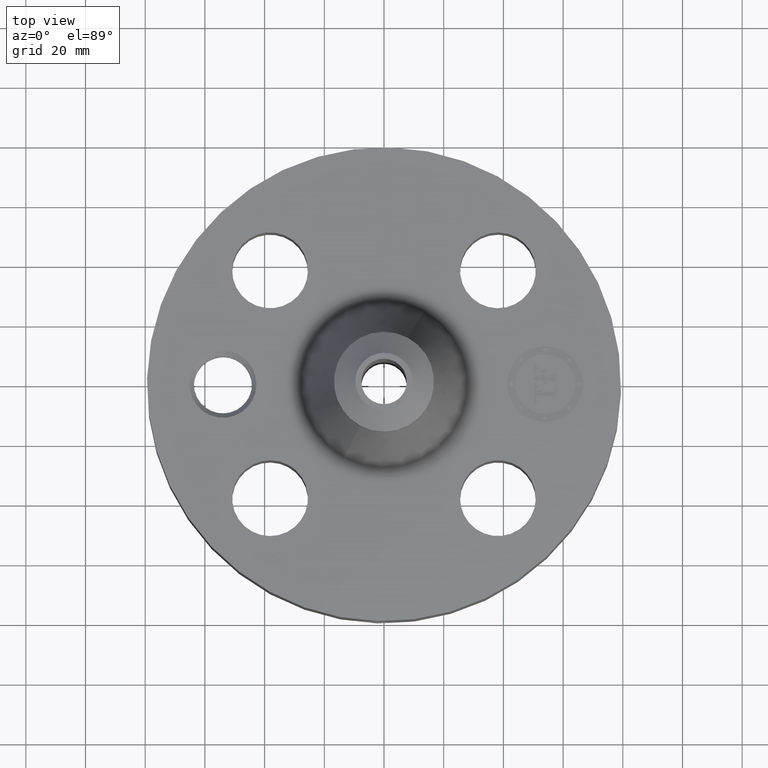
[diagram: clean part render]
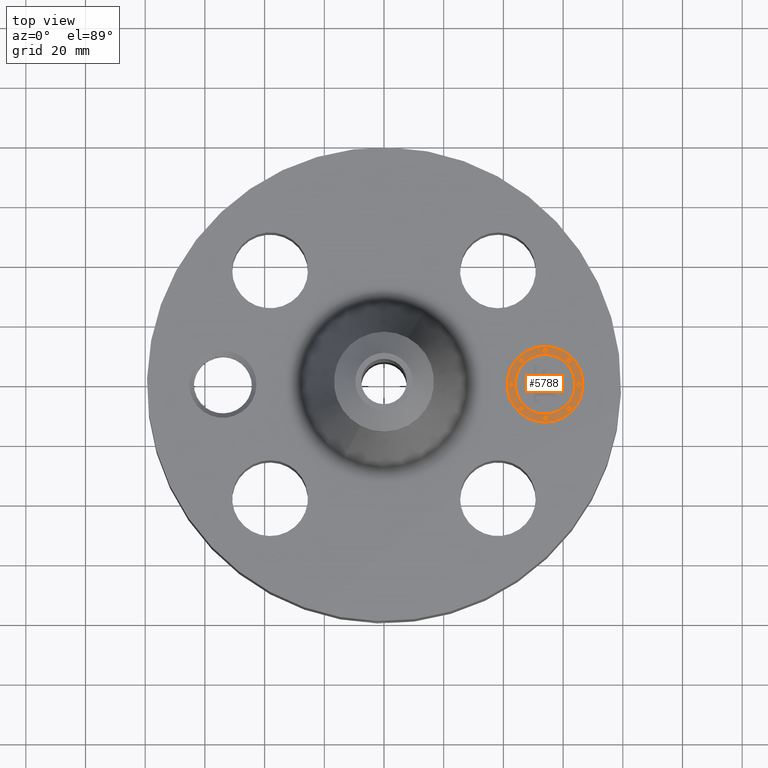
[diagram: same view with one face highlighted and labeled with its STEP entity id]
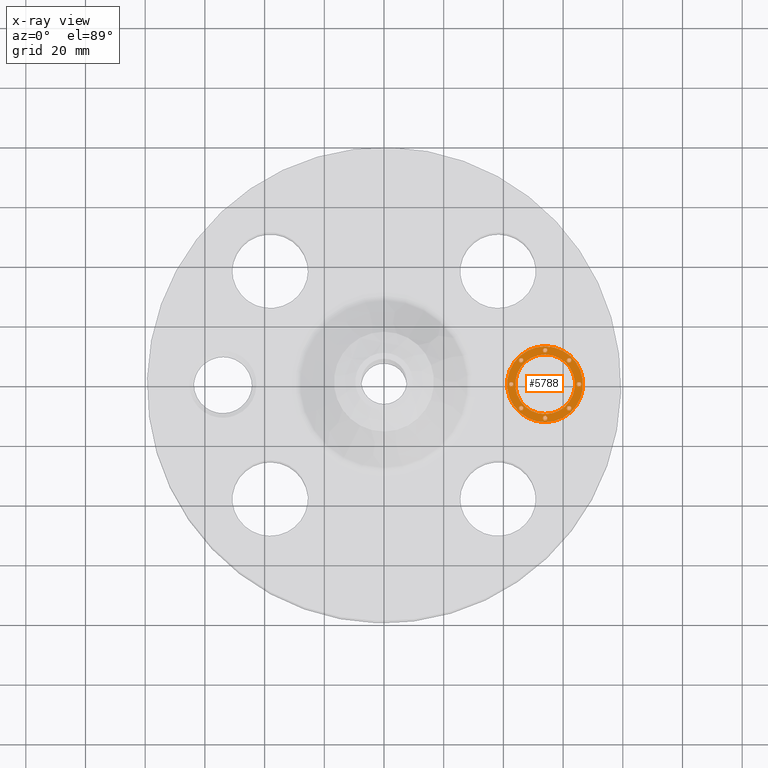
[diagram: x-ray of the same camera — body ghosted, the highlighted face saturated]
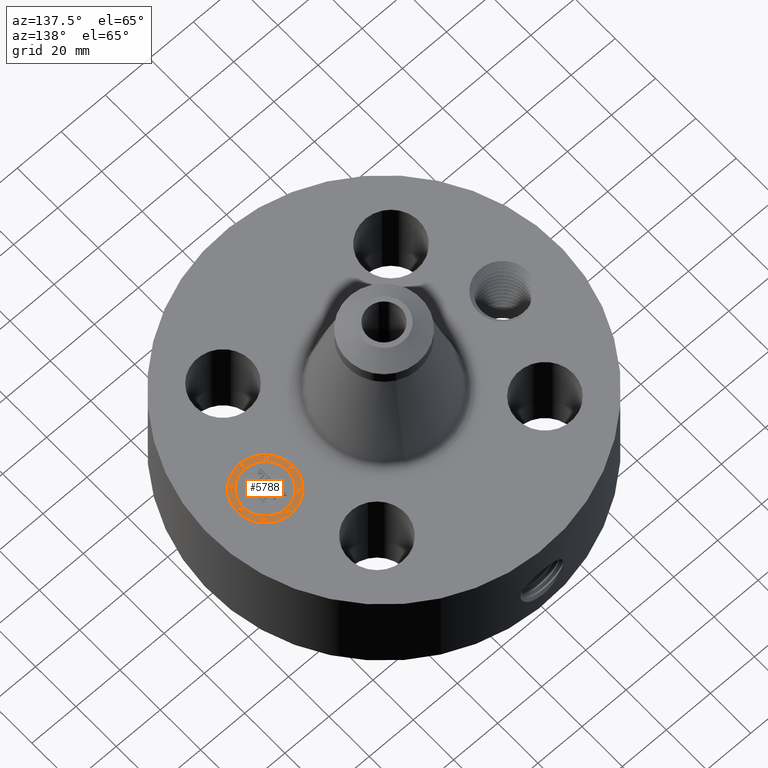
[diagram: same view with one face highlighted and labeled with its STEP entity id]
A machine part, top view. The second image highlights one B-rep face of the part: STEP entity #5788.
The next image is the same camera in x-ray: the body ghosted, the highlighted face saturated — about 0% of this face is hidden behind the body in this view.
A second angle (auxiliary view) of the same face is appended — the face is thin or edge-on in the first view.
In plain terms, the highlighted planar face has unit normal (0, 0, 1).
Its self-contained STEP definition (entity closure, byte-faithful):
#4266=AXIS2_PLACEMENT_3D('Circle Axis2P3D',#4264,#4265,$) ;
#4293=AXIS2_PLACEMENT_3D('Circle Axis2P3D',#4291,#4292,$) ;
#5620=AXIS2_PLACEMENT_3D('Plane Axis2P3D',#5617,#5618,#5619) ;
#5628=AXIS2_PLACEMENT_3D('Circle Axis2P3D',#5626,#5627,$) ;
#5637=AXIS2_PLACEMENT_3D('Circle Axis2P3D',#5635,#5636,$) ;
#5646=AXIS2_PLACEMENT_3D('Circle Axis2P3D',#5644,#5645,$) ;
#5655=AXIS2_PLACEMENT_3D('Circle Axis2P3D',#5653,#5654,$) ;
#5664=AXIS2_PLACEMENT_3D('Circle Axis2P3D',#5662,#5663,$) ;
#5673=AXIS2_PLACEMENT_3D('Circle Axis2P3D',#5671,#5672,$) ;
#5682=AXIS2_PLACEMENT_3D('Circle Axis2P3D',#5680,#5681,$) ;
#5691=AXIS2_PLACEMENT_3D('Circle Axis2P3D',#5689,#5690,$) ;
#5700=AXIS2_PLACEMENT_3D('Circle Axis2P3D',#5698,#5699,$) ;
#5709=AXIS2_PLACEMENT_3D('Circle Axis2P3D',#5707,#5708,$) ;
#5718=AXIS2_PLACEMENT_3D('Circle Axis2P3D',#5716,#5717,$) ;
#5727=AXIS2_PLACEMENT_3D('Circle Axis2P3D',#5725,#5726,$) ;
#5736=AXIS2_PLACEMENT_3D('Circle Axis2P3D',#5734,#5735,$) ;
#5745=AXIS2_PLACEMENT_3D('Circle Axis2P3D',#5743,#5744,$) ;
#5754=AXIS2_PLACEMENT_3D('Circle Axis2P3D',#5752,#5753,$) ;
#5763=AXIS2_PLACEMENT_3D('Circle Axis2P3D',#5761,#5762,$) ;
#5772=AXIS2_PLACEMENT_3D('Circle Axis2P3D',#5770,#5771,$) ;
#5781=AXIS2_PLACEMENT_3D('Circle Axis2P3D',#5779,#5780,$) ;
#4261=CARTESIAN_POINT('Vertex',(2.12500000001,-0.499999995002,1.73500000001)) ;
#4264=CARTESIAN_POINT('Axis2P3D Location',(2.12500000001,-5.31982488653E-015,1.73500000001)) ;
#4268=CARTESIAN_POINT('Vertex',(2.12500000001,0.499999995002,1.73500000001)) ;
#4291=CARTESIAN_POINT('Axis2P3D Location',(2.12500000001,-5.31982488653E-015,1.73500000001)) ;
#5617=CARTESIAN_POINT('Axis2P3D Location',(0.,0.,1.73500000001)) ;
#5626=CARTESIAN_POINT('Axis2P3D Location',(2.12500000001,-5.31982488653E-015,1.73500000001)) ;
#5630=CARTESIAN_POINT('Vertex',(2.12500000001,-0.393939390002,1.73500000001)) ;
#5632=CARTESIAN_POINT('Vertex',(2.12500000001,0.393939390002,1.73500000001)) ;
#5635=CARTESIAN_POINT('Axis2P3D Location',(2.12500000001,-5.31982488653E-015,1.73500000001)) ;
#5644=CARTESIAN_POINT('Axis2P3D Location',(1.67803030751,-6.59137593995E-015,1.73500000001)) ;
#5648=CARTESIAN_POINT('Vertex',(1.67803030751,-0.0303030300001,1.73500000001)) ;
#5650=CARTESIAN_POINT('Vertex',(1.67803030751,0.0303030300001,1.73500000001)) ;
#5653=CARTESIAN_POINT('Axis2P3D Location',(1.67803030751,-6.59137593995E-015,1.73500000001)) ;
#5662=CARTESIAN_POINT('Axis2P3D Location',(2.12500000001,0.446969692502,1.73500000001)) ;
#5666=CARTESIAN_POINT('Vertex',(2.12500000001,0.416666662502,1.73500000001)) ;
#5668=CARTESIAN_POINT('Vertex',(2.12500000001,0.477272722502,1.73500000001)) ;
#5671=CARTESIAN_POINT('Axis2P3D Location',(2.12500000001,0.446969692502,1.73500000001)) ;
#5680=CARTESIAN_POINT('Axis2P3D Location',(1.80894469946,0.316055300553,1.73500000001)) ;
#5684=CARTESIAN_POINT('Vertex',(1.80894469946,0.285752270553,1.73500000001)) ;
#5686=CARTESIAN_POINT('Vertex',(1.80894469946,0.346358330553,1.73500000001)) ;
#5689=CARTESIAN_POINT('Axis2P3D Location',(1.80894469946,0.316055300553,1.73500000001)) ;
#5698=CARTESIAN_POINT('Axis2P3D Location',(2.57196969251,6.40670149507E-015,1.73500000001)) ;
#5702=CARTESIAN_POINT('Vertex',(2.57196969251,-0.0303030300001,1.73500000001)) ;
#5704=CARTESIAN_POINT('Vertex',(2.57196969251,0.0303030300001,1.73500000001)) ;
#5707=CARTESIAN_POINT('Axis2P3D Location',(2.57196969251,6.40670149507E-015,1.73500000001)) ;
#5716=CARTESIAN_POINT('Axis2P3D Location',(2.44105530056,0.316055300553,1.73500000001)) ;
#5720=CARTESIAN_POINT('Vertex',(2.44105530056,0.285752270553,1.73500000001)) ;
#5722=CARTESIAN_POINT('Vertex',(2.44105530056,0.346358330553,1.73500000001)) ;
#5725=CARTESIAN_POINT('Axis2P3D Location',(2.44105530056,0.316055300553,1.73500000001)) ;
#5734=CARTESIAN_POINT('Axis2P3D Location',(2.12500000001,-0.446969692502,1.73500000001)) ;
#5738=CARTESIAN_POINT('Vertex',(2.12500000001,-0.416666662502,1.73500000001)) ;
#5740=CARTESIAN_POINT('Vertex',(2.12500000001,-0.477272722502,1.73500000001)) ;
#5743=CARTESIAN_POINT('Axis2P3D Location',(2.12500000001,-0.446969692502,1.73500000001)) ;
#5752=CARTESIAN_POINT('Axis2P3D Location',(1.80894469946,-0.316055300553,1.73500000001)) ;
#5756=CARTESIAN_POINT('Vertex',(1.80894469946,-0.285752270553,1.73500000001)) ;
#5758=CARTESIAN_POINT('Vertex',(1.80894469946,-0.346358330553,1.73500000001)) ;
#5761=CARTESIAN_POINT('Axis2P3D Location',(1.80894469946,-0.316055300553,1.73500000001)) ;
#5770=CARTESIAN_POINT('Axis2P3D Location',(2.44105530056,-0.316055300553,1.73500000001)) ;
#5774=CARTESIAN_POINT('Vertex',(2.44105530056,-0.285752270553,1.73500000001)) ;
#5776=CARTESIAN_POINT('Vertex',(2.44105530056,-0.346358330553,1.73500000001)) ;
#5779=CARTESIAN_POINT('Axis2P3D Location',(2.44105530056,-0.316055300553,1.73500000001)) ;
#4265=DIRECTION('Axis2P3D Direction',(0.,0.,0.0393700787402)) ;
#4292=DIRECTION('Axis2P3D Direction',(0.,0.,0.0393700787402)) ;
#5618=DIRECTION('Axis2P3D Direction',(0.,0.,0.0393700787402)) ;
#5619=DIRECTION('Axis2P3D XDirection',(0.0393700787402,0.,0.)) ;
#5627=DIRECTION('Axis2P3D Direction',(0.,0.,0.0393700787402)) ;
#5636=DIRECTION('Axis2P3D Direction',(0.,0.,0.0393700787402)) ;
#5645=DIRECTION('Axis2P3D Direction',(0.,0.,0.0393700787402)) ;
#5654=DIRECTION('Axis2P3D Direction',(0.,0.,0.0393700787402)) ;
#5663=DIRECTION('Axis2P3D Direction',(0.,0.,0.0393700787402)) ;
#5672=DIRECTION('Axis2P3D Direction',(0.,0.,0.0393700787402)) ;
#5681=DIRECTION('Axis2P3D Direction',(0.,0.,0.0393700787402)) ;
#5690=DIRECTION('Axis2P3D Direction',(0.,0.,0.0393700787402)) ;
#5699=DIRECTION('Axis2P3D Direction',(0.,0.,0.0393700787402)) ;
#5708=DIRECTION('Axis2P3D Direction',(0.,0.,0.0393700787402)) ;
#5717=DIRECTION('Axis2P3D Direction',(0.,0.,0.0393700787402)) ;
#5726=DIRECTION('Axis2P3D Direction',(0.,0.,0.0393700787402)) ;
#5735=DIRECTION('Axis2P3D Direction',(0.,0.,0.0393700787402)) ;
#5744=DIRECTION('Axis2P3D Direction',(0.,0.,0.0393700787402)) ;
#5753=DIRECTION('Axis2P3D Direction',(0.,0.,0.0393700787402)) ;
#5762=DIRECTION('Axis2P3D Direction',(0.,0.,0.0393700787402)) ;
#5771=DIRECTION('Axis2P3D Direction',(0.,0.,0.0393700787402)) ;
#5780=DIRECTION('Axis2P3D Direction',(0.,0.,0.0393700787402)) ;
#5623=ORIENTED_EDGE('',*,*,#4270,.T.) ;
#5624=ORIENTED_EDGE('',*,*,#4295,.T.) ;
#5641=ORIENTED_EDGE('',*,*,#5634,.F.) ;
#5642=ORIENTED_EDGE('',*,*,#5639,.F.) ;
#5659=ORIENTED_EDGE('',*,*,#5652,.F.) ;
#5660=ORIENTED_EDGE('',*,*,#5657,.F.) ;
#5677=ORIENTED_EDGE('',*,*,#5670,.F.) ;
#5678=ORIENTED_EDGE('',*,*,#5675,.F.) ;
#5695=ORIENTED_EDGE('',*,*,#5688,.F.) ;
#5696=ORIENTED_EDGE('',*,*,#5693,.F.) ;
#5713=ORIENTED_EDGE('',*,*,#5706,.F.) ;
#5714=ORIENTED_EDGE('',*,*,#5711,.F.) ;
#5731=ORIENTED_EDGE('',*,*,#5724,.F.) ;
#5732=ORIENTED_EDGE('',*,*,#5729,.F.) ;
#5749=ORIENTED_EDGE('',*,*,#5742,.F.) ;
#5750=ORIENTED_EDGE('',*,*,#5747,.F.) ;
#5767=ORIENTED_EDGE('',*,*,#5760,.F.) ;
#5768=ORIENTED_EDGE('',*,*,#5765,.F.) ;
#5785=ORIENTED_EDGE('',*,*,#5778,.F.) ;
#5786=ORIENTED_EDGE('',*,*,#5783,.F.) ;
#5643=FACE_BOUND('',#5640,.T.) ;
#5661=FACE_BOUND('',#5658,.T.) ;
#5679=FACE_BOUND('',#5676,.T.) ;
#5697=FACE_BOUND('',#5694,.T.) ;
#5715=FACE_BOUND('',#5712,.T.) ;
#5733=FACE_BOUND('',#5730,.T.) ;
#5751=FACE_BOUND('',#5748,.T.) ;
#5769=FACE_BOUND('',#5766,.T.) ;
#5787=FACE_BOUND('',#5784,.T.) ;
#5788=ADVANCED_FACE('PartBody',(#5625,#5643,#5661,#5679,#5697,#5715,#5733,#5751,#5769,#5787),#5621,.T.) ;
#4267=CIRCLE('generated circle',#4266,0.499999995002) ;
#4294=CIRCLE('generated circle',#4293,0.499999995002) ;
#5629=CIRCLE('generated circle',#5628,0.393939390002) ;
#5638=CIRCLE('generated circle',#5637,0.393939390002) ;
#5647=CIRCLE('generated circle',#5646,0.0303030300001) ;
#5656=CIRCLE('generated circle',#5655,0.0303030300001) ;
#5665=CIRCLE('generated circle',#5664,0.0303030300001) ;
#5674=CIRCLE('generated circle',#5673,0.0303030300001) ;
#5683=CIRCLE('generated circle',#5682,0.0303030300001) ;
#5692=CIRCLE('generated circle',#5691,0.0303030300001) ;
#5701=CIRCLE('generated circle',#5700,0.0303030300001) ;
#5710=CIRCLE('generated circle',#5709,0.0303030300001) ;
#5719=CIRCLE('generated circle',#5718,0.0303030300001) ;
#5728=CIRCLE('generated circle',#5727,0.0303030300001) ;
#5737=CIRCLE('generated circle',#5736,0.0303030300001) ;
#5746=CIRCLE('generated circle',#5745,0.0303030300001) ;
#5755=CIRCLE('generated circle',#5754,0.0303030300001) ;
#5764=CIRCLE('generated circle',#5763,0.0303030300001) ;
#5773=CIRCLE('generated circle',#5772,0.0303030300001) ;
#5782=CIRCLE('generated circle',#5781,0.0303030300001) ;
#4270=EDGE_CURVE('',#4269,#4262,#4267,.T.) ;
#4295=EDGE_CURVE('',#4262,#4269,#4294,.T.) ;
#5634=EDGE_CURVE('',#5631,#5633,#5629,.T.) ;
#5639=EDGE_CURVE('',#5633,#5631,#5638,.T.) ;
#5652=EDGE_CURVE('',#5649,#5651,#5647,.T.) ;
#5657=EDGE_CURVE('',#5651,#5649,#5656,.T.) ;
#5670=EDGE_CURVE('',#5667,#5669,#5665,.T.) ;
#5675=EDGE_CURVE('',#5669,#5667,#5674,.T.) ;
#5688=EDGE_CURVE('',#5685,#5687,#5683,.T.) ;
#5693=EDGE_CURVE('',#5687,#5685,#5692,.T.) ;
#5706=EDGE_CURVE('',#5703,#5705,#5701,.T.) ;
#5711=EDGE_CURVE('',#5705,#5703,#5710,.T.) ;
#5724=EDGE_CURVE('',#5721,#5723,#5719,.T.) ;
#5729=EDGE_CURVE('',#5723,#5721,#5728,.T.) ;
#5742=EDGE_CURVE('',#5739,#5741,#5737,.T.) ;
#5747=EDGE_CURVE('',#5741,#5739,#5746,.T.) ;
#5760=EDGE_CURVE('',#5757,#5759,#5755,.T.) ;
#5765=EDGE_CURVE('',#5759,#5757,#5764,.T.) ;
#5778=EDGE_CURVE('',#5775,#5777,#5773,.T.) ;
#5783=EDGE_CURVE('',#5777,#5775,#5782,.T.) ;
#5622=EDGE_LOOP('',(#5623,#5624)) ;
#5640=EDGE_LOOP('',(#5641,#5642)) ;
#5658=EDGE_LOOP('',(#5659,#5660)) ;
#5676=EDGE_LOOP('',(#5677,#5678)) ;
#5694=EDGE_LOOP('',(#5695,#5696)) ;
#5712=EDGE_LOOP('',(#5713,#5714)) ;
#5730=EDGE_LOOP('',(#5731,#5732)) ;
#5748=EDGE_LOOP('',(#5749,#5750)) ;
#5766=EDGE_LOOP('',(#5767,#5768)) ;
#5784=EDGE_LOOP('',(#5785,#5786)) ;
#5625=FACE_OUTER_BOUND('',#5622,.T.) ;
#5621=PLANE('',#5620) ;
#4262=VERTEX_POINT('',#4261) ;
#4269=VERTEX_POINT('',#4268) ;
#5631=VERTEX_POINT('',#5630) ;
#5633=VERTEX_POINT('',#5632) ;
#5649=VERTEX_POINT('',#5648) ;
#5651=VERTEX_POINT('',#5650) ;
#5667=VERTEX_POINT('',#5666) ;
#5669=VERTEX_POINT('',#5668) ;
#5685=VERTEX_POINT('',#5684) ;
#5687=VERTEX_POINT('',#5686) ;
#5703=VERTEX_POINT('',#5702) ;
#5705=VERTEX_POINT('',#5704) ;
#5721=VERTEX_POINT('',#5720) ;
#5723=VERTEX_POINT('',#5722) ;
#5739=VERTEX_POINT('',#5738) ;
#5741=VERTEX_POINT('',#5740) ;
#5757=VERTEX_POINT('',#5756) ;
#5759=VERTEX_POINT('',#5758) ;
#5775=VERTEX_POINT('',#5774) ;
#5777=VERTEX_POINT('',#5776) ;